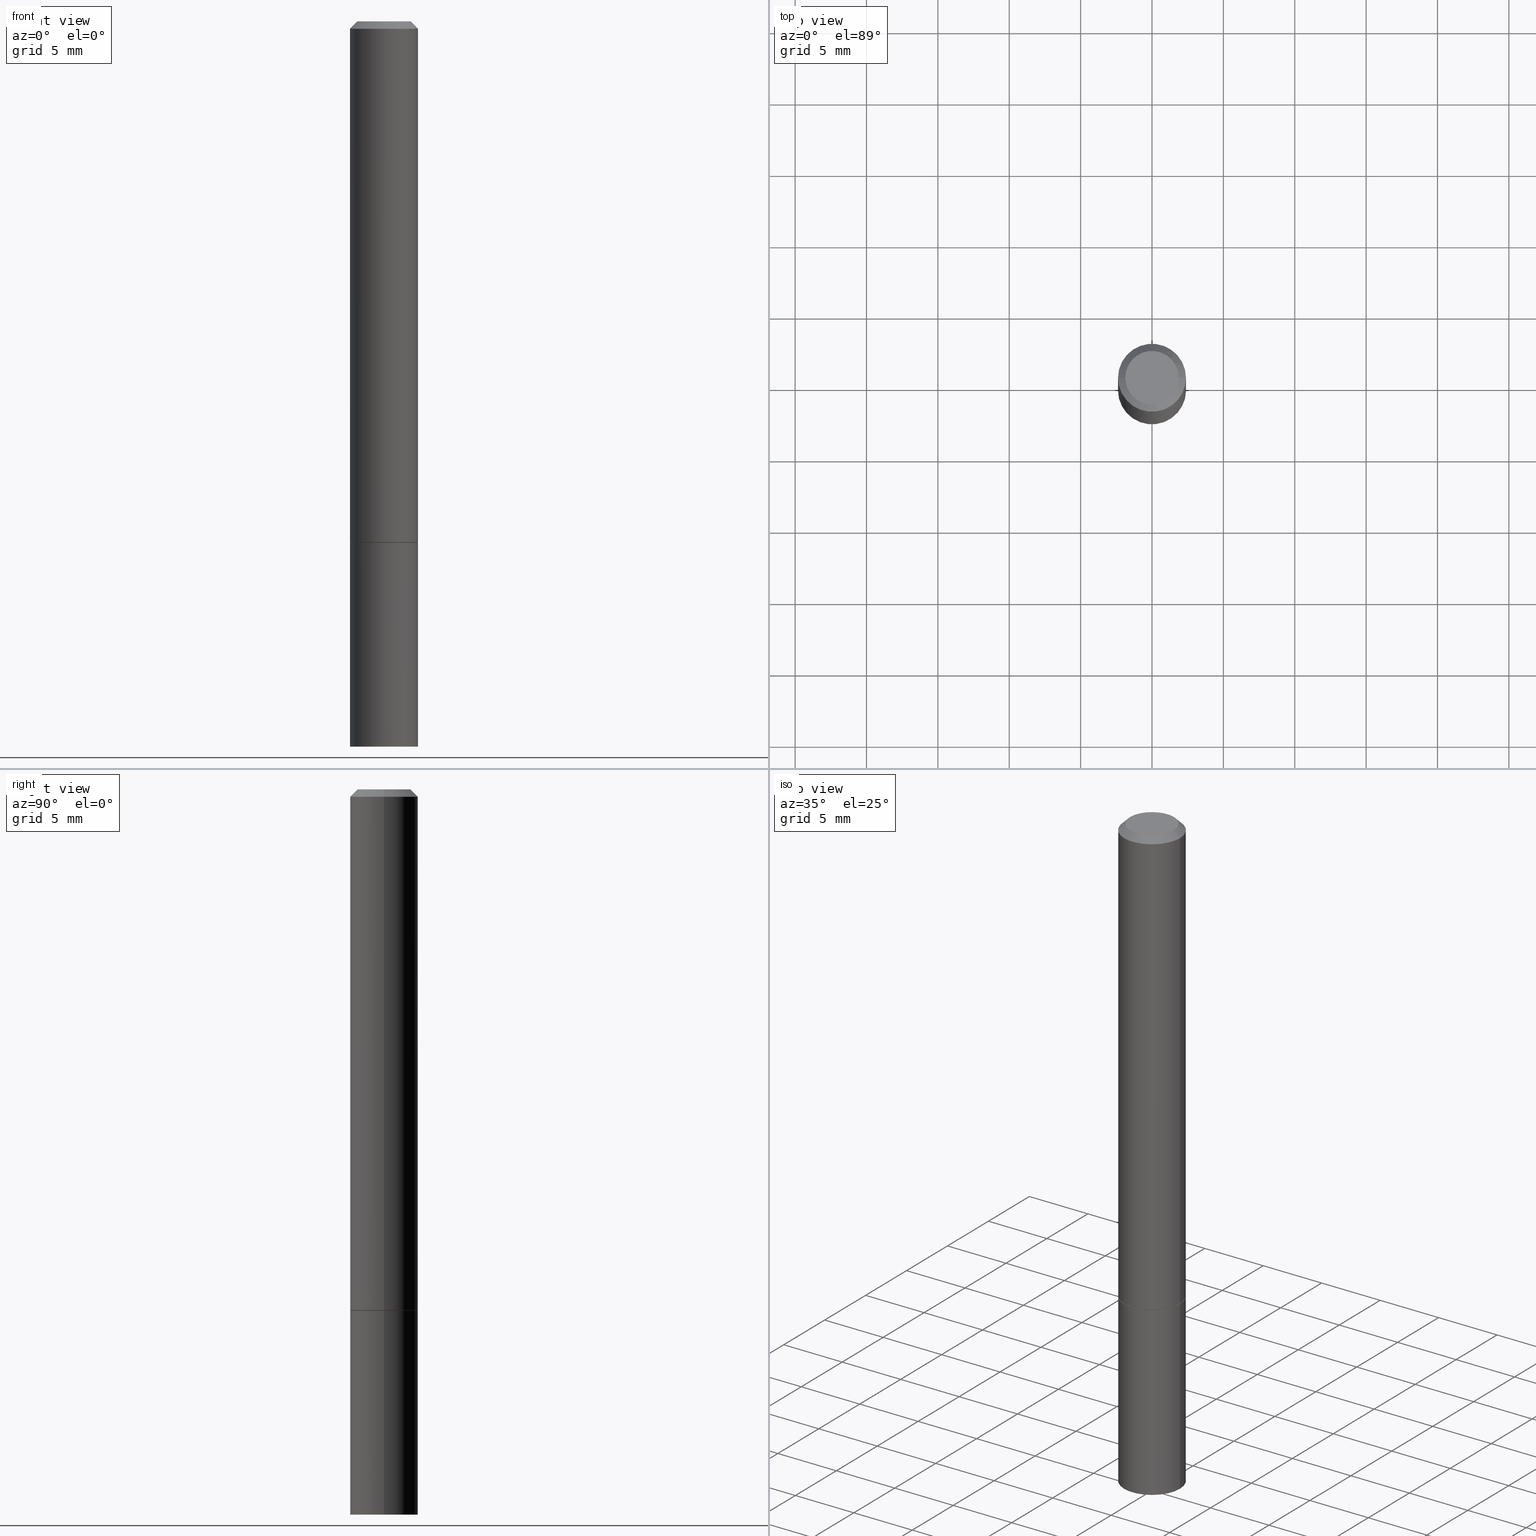
[diagram: canonical four-view strip — front | top / right | iso, engineering-drawing reading convention]
A machine part, canonical four-view strip (front | top / right | iso — engineering-drawing reading convention). The complete STEP part file that produces these views, byte-faithful:
ISO-10303-21;
HEADER;
FILE_DESCRIPTION (( 'STEP AP203' ),
    '1' );
FILE_NAME ('34661.STEP',
    '2024-02-27T16:35:18',
    ( '' ),
    ( '' ),
    'SwSTEP 2.0',
    'SolidWorks 2023',
    '' );
FILE_SCHEMA (( 'CONFIG_CONTROL_DESIGN' ));
ENDSEC;

DATA;
#1 = CYLINDRICAL_SURFACE ( 'NONE', #86, 0.09374999999999991673 ) ;
#2 = PERSON_AND_ORGANIZATION ( #312, #95 ) ;
#3 = LINE ( 'NONE', #251, #40 ) ;
#4 = CIRCLE ( 'NONE', #242, 0.09375000000000001388 ) ;
#5 = PLANE ( 'NONE',  #113 ) ;
#6 = DIRECTION ( 'NONE',  ( -2.445468806185136597E-29, 3.491481338843145583E-15, 1.000000000000000000 ) ) ;
#7 = MANIFOLD_SOLID_BREP ( 'Body-Move/Copy2[1]', #55 ) ;
#8 = CARTESIAN_POINT ( 'NONE',  ( 4.890937612370273194E-29, -6.982962677686291165E-15, -2.000000000000000000 ) ) ;
#9 = AXIS2_PLACEMENT_3D ( 'NONE', #184, #315, #104 ) ;
#10 = VECTOR ( 'NONE', #115, 39.37007874015748143 ) ;
#11 = CARTESIAN_POINT ( 'NONE',  ( 3.515361408891133858E-29, -5.019004424587021553E-15, -1.437500000000000000 ) ) ;
#12 = ADVANCED_FACE ( 'NONE', ( #78 ), #151, .T. ) ;
#13 = ORIENTED_EDGE ( 'NONE', *, *, #257, .T. ) ;
#14 = CYLINDRICAL_SURFACE ( 'NONE', #363, 0.09375000000000001388 ) ;
#15 = DIRECTION ( 'NONE',  ( -2.445468806185136877E-29, 3.491481338843145188E-15, 1.000000000000000000 ) ) ;
#16 = FACE_OUTER_BOUND ( 'NONE', #23, .T. ) ;
#17 = ADVANCED_FACE ( 'NONE', ( #185 ), #14, .T. ) ;
#18 = FACE_OUTER_BOUND ( 'NONE', #236, .T. ) ;
#19 = COORDINATED_UNIVERSAL_TIME_OFFSET ( 5, 0, .BEHIND. ) ;
#20 = ADVANCED_FACE ( 'NONE', ( #18 ), #215, .T. ) ;
#21 = ORIENTED_EDGE ( 'NONE', *, *, #229, .T. ) ;
#22 = ADVANCED_FACE ( 'NONE', ( #155 ), #27, .T. ) ;
#23 = EDGE_LOOP ( 'NONE', ( #332, #209 ) ) ;
#24 = PERSON_AND_ORGANIZATION_ROLE ( 'creator' ) ;
#25 = CARTESIAN_POINT ( 'NONE',  ( -0.07374999999999988509, 5.499083108677923596E-16, 4.268512490096688071E-18 ) ) ;
#26 = AXIS2_PLACEMENT_3D ( 'NONE', #11, #347, #325 ) ;
#27 = CONICAL_SURFACE ( 'NONE', #351, 0.09374999999999983347, 0.7853981633974469467 ) ;
#28 = DATE_TIME_ROLE ( 'creation_date' ) ;
#29 = CARTESIAN_POINT ( 'NONE',  ( 3.512915940084948255E-29, -5.015512943248178546E-15, -1.436499999999999888 ) ) ;
#30 = PERSON_AND_ORGANIZATION_ROLE ( 'classification_officer' ) ;
#31 = CARTESIAN_POINT ( 'NONE',  ( 0.09375000000000001388, -7.637615428719378669E-15, -2.000000000000000000 ) ) ;
#32 = DIRECTION ( 'NONE',  ( -2.445468806185136597E-29, 3.491481338843145583E-15, 1.000000000000000000 ) ) ;
#33 = CC_DESIGN_APPROVAL ( #129, ( #256 ) ) ;
#34 = CIRCLE ( 'NONE', #128, 0.09374999999999983347 ) ;
#35 = ADVANCED_FACE ( 'NONE', ( #16 ), #134, .F. ) ;
#36 = DIRECTION ( 'NONE',  ( -1.000000000000000000, 6.982962677686265922E-15, -4.876176775795935793E-29 ) ) ;
#37 = DIRECTION ( 'NONE',  ( 0.000000000000000000, 0.000000000000000000, 1.000000000000000000 ) ) ;
#38 = EDGE_CURVE ( 'NONE', #102, #80, #328, .T. ) ;
#39 = LINE ( 'NONE', #267, #183 ) ;
#40 = VECTOR ( 'NONE', #276, 39.37007874015748143 ) ;
#41 = CONICAL_SURFACE ( 'NONE', #9, 0.09274999999999999911, 0.7853981633974141952 ) ;
#42 = DIRECTION ( 'NONE',  ( -2.445468806185136597E-29, 3.491481338843145583E-15, 1.000000000000000000 ) ) ;
#43 = ORIENTED_EDGE ( 'NONE', *, *, #76, .F. ) ;
#44 = ORIENTED_EDGE ( 'NONE', *, *, #164, .F. ) ;
#45 = CC_DESIGN_SECURITY_CLASSIFICATION ( #235, ( #256 ) ) ;
#46 = CARTESIAN_POINT ( 'NONE',  ( -0.09374999999999991673, 6.661338147750933326E-16, -4.611501647113969791E-30 ) ) ;
#47 = VERTEX_POINT ( 'NONE', #166 ) ;
#48 = EDGE_LOOP ( 'NONE', ( #130, #127 ) ) ;
#49 = ADVANCED_FACE ( 'NONE', ( #280 ), #90, .T. ) ;
#50 = AXIS2_PLACEMENT_3D ( 'NONE', #8, #42, #214 ) ;
#51 = ORIENTED_EDGE ( 'NONE', *, *, #107, .T. ) ;
#52 = PERSON_AND_ORGANIZATION_ROLE ( 'creator' ) ;
#53 = ORIENTED_EDGE ( 'NONE', *, *, #76, .T. ) ;
#54 = DIRECTION ( 'NONE',  ( -2.445468806185136597E-29, 3.491481338843145583E-15, 1.000000000000000000 ) ) ;
#55 = CLOSED_SHELL ( 'NONE', ( #20, #49, #35, #17 ) ) ;
#56 = DIRECTION ( 'NONE',  ( 1.000000000000000000, -6.982962677686261189E-15, 0.000000000000000000 ) ) ;
#57 = CIRCLE ( 'NONE', #139, 0.09375000000000001388 ) ;
#58 = PERSON_AND_ORGANIZATION_ROLE ( 'design_owner' ) ;
#59 = DIRECTION ( 'NONE',  ( -1.000000000000000000, 6.982962677686265922E-15, -4.876176775795935793E-29 ) ) ;
#60 = CC_DESIGN_DATE_AND_TIME_ASSIGNMENT ( #223, #330, ( #235 ) ) ;
#61 = DIRECTION ( 'NONE',  ( 1.000000000000000000, -6.982962677686265922E-15, 4.875869617646592813E-29 ) ) ;
#62 = EDGE_CURVE ( 'NONE', #262, #270, #314, .T. ) ;
#63 = CARTESIAN_POINT ( 'NONE',  ( -1.043851414335219820E-46, 1.490343170380447200E-32, 4.268512490100411279E-18 ) ) ;
#64 = CIRCLE ( 'NONE', #50, 0.09375000000000001388 ) ;
#65 = APPLICATION_PROTOCOL_DEFINITION ( 'international standard', 'config_control_design', 1994, #355 ) ;
#66 = CARTESIAN_POINT ( 'NONE',  ( 0.07374999999999988509, -6.094815207017963170E-16, 4.268512490104342487E-18 ) ) ;
#67 = ORIENTED_EDGE ( 'NONE', *, *, #152, .F. ) ;
#68 =( LENGTH_UNIT ( ) NAMED_UNIT ( * ) SI_UNIT ( $, .METRE. ) );
#69 = EDGE_LOOP ( 'NONE', ( #337, #97, #295, #353 ) ) ;
#70 = CARTESIAN_POINT ( 'NONE',  ( 4.890937612370274910E-31, -6.982962677686295307E-17, -0.02000000000000000736 ) ) ;
#71 = EDGE_LOOP ( 'NONE', ( #300, #190, #51, #44 ) ) ;
#72 = ORIENTED_EDGE ( 'NONE', *, *, #107, .F. ) ;
#73 = COORDINATED_UNIVERSAL_TIME_OFFSET ( 5, 0, .BEHIND. ) ;
#74 = DESIGN_CONTEXT ( 'detailed design', #96, 'design' ) ;
#75 = ORIENTED_EDGE ( 'NONE', *, *, #164, .T. ) ;
#76 = EDGE_CURVE ( 'NONE', #206, #102, #3, .T. ) ;
#77 = AXIS2_PLACEMENT_3D ( 'NONE', #233, #150, #131 ) ;
#78 = FACE_OUTER_BOUND ( 'NONE', #69, .T. ) ;
#79 = CALENDAR_DATE ( 2024, 27, 2 ) ;
#80 = VERTEX_POINT ( 'NONE', #199 ) ;
#81 = DIRECTION ( 'NONE',  ( 2.438088387897960049E-29, -3.491481338843145188E-15, -1.000000000000000000 ) ) ;
#82 = CALENDAR_DATE ( 2024, 27, 2 ) ;
#83 = EDGE_CURVE ( 'NONE', #108, #262, #103, .T. ) ;
#84 = CIRCLE ( 'NONE', #352, 0.09375000000000001388 ) ;
#85 = LINE ( 'NONE', #365, #334 ) ;
#86 = AXIS2_PLACEMENT_3D ( 'NONE', #117, #6, #259 ) ;
#87 = DIRECTION ( 'NONE',  ( -2.445468806185136597E-29, 3.491481338843145583E-15, 1.000000000000000000 ) ) ;
#88 = FACE_OUTER_BOUND ( 'NONE', #304, .T. ) ;
#89 = EDGE_CURVE ( 'NONE', #270, #320, #34, .T. ) ;
#90 = PLANE ( 'NONE',  #197 ) ;
#91 = CARTESIAN_POINT ( 'NONE',  ( -0.09375000000000001388, -1.876537470237424631E-15, -1.436499999999999888 ) ) ;
#92 = ORIENTED_EDGE ( 'NONE', *, *, #83, .T. ) ;
#93 = PRODUCT_DEFINITION_SHAPE ( 'NONE', 'NONE',  #204 ) ;
#94 = DIRECTION ( 'NONE',  ( -2.445468806185136877E-29, 3.491481338843145188E-15, 1.000000000000000000 ) ) ;
#95 = ORGANIZATION ( 'UNSPECIFIED', 'UNSPECIFIED', '' ) ;
#96 = APPLICATION_CONTEXT ( 'configuration controlled 3d designs of mechanical parts and assemblies' ) ;
#97 = ORIENTED_EDGE ( 'NONE', *, *, #83, .F. ) ;
#98 = EDGE_LOOP ( 'NONE', ( #193, #181, #298, #72 ) ) ;
#99 = CC_DESIGN_PERSON_AND_ORGANIZATION_ASSIGNMENT ( #168, #274, ( #256 ) ) ;
#100 = FACE_OUTER_BOUND ( 'NONE', #268, .T. ) ;
#101 = DIMENSIONAL_EXPONENTS ( 1.000000000000000000, 0.000000000000000000, 0.000000000000000000, 0.000000000000000000, 0.000000000000000000, 0.000000000000000000, 0.000000000000000000 ) ;
#102 = VERTEX_POINT ( 'NONE', #203 ) ;
#103 = CIRCLE ( 'NONE', #241, 0.07374999999999988509 ) ;
#104 = DIRECTION ( 'NONE',  ( 1.000000000000000000, -6.982962677686261977E-15, 0.000000000000000000 ) ) ;
#105 = ORIENTED_EDGE ( 'NONE', *, *, #154, .F. ) ;
#106 = DIRECTION ( 'NONE',  ( 1.000000000000000000, -6.982962677686261189E-15, 0.000000000000000000 ) ) ;
#107 = EDGE_CURVE ( 'NONE', #358, #47, #258, .T. ) ;
#108 = VERTEX_POINT ( 'NONE', #25 ) ;
#109 = APPROVAL_STATUS ( 'not_yet_approved' ) ;
#110 = ORIENTED_EDGE ( 'NONE', *, *, #176, .F. ) ;
#111 = CALENDAR_DATE ( 2024, 27, 2 ) ;
#112 = ORIENTED_EDGE ( 'NONE', *, *, #89, .F. ) ;
#113 = AXIS2_PLACEMENT_3D ( 'NONE', #311, #81, #59 ) ;
#114 = PERSON_AND_ORGANIZATION ( #312, #95 ) ;
#115 = DIRECTION ( 'NONE',  ( 0.7071067811865465735, -7.319954787623252890E-15, -0.7071067811865484609 ) ) ;
#116 = EDGE_CURVE ( 'NONE', #136, #240, #85, .T. ) ;
#117 = CARTESIAN_POINT ( 'NONE',  ( 0.000000000000000000, 0.000000000000000000, 0.000000000000000000 ) ) ;
#118 =( GEOMETRIC_REPRESENTATION_CONTEXT ( 3 ) GLOBAL_UNCERTAINTY_ASSIGNED_CONTEXT ( ( #165 ) ) GLOBAL_UNIT_ASSIGNED_CONTEXT ( ( #153, #301, #269 ) ) REPRESENTATION_CONTEXT ( 'NONE', 'WORKASPACE' ) );
#119 = ADVANCED_FACE ( 'NONE', ( #147 ), #5, .F. ) ;
#120 = DIRECTION ( 'NONE',  ( -2.445468806185136597E-29, 3.491481338843145583E-15, 1.000000000000000000 ) ) ;
#121 = CARTESIAN_POINT ( 'NONE',  ( 0.09274999999999999911, -5.666674212942423043E-15, -1.437500000000000000 ) ) ;
#122 = CARTESIAN_POINT ( 'NONE',  ( 3.515361408891133858E-29, -5.019004424587021553E-15, -1.437500000000000000 ) ) ;
#123 = AXIS2_PLACEMENT_3D ( 'NONE', #187, #158, #302 ) ;
#124 = PLANE ( 'NONE',  #77 ) ;
#125 = DIRECTION ( 'NONE',  ( -2.445468806185136877E-29, 3.491481338843145188E-15, 1.000000000000000000 ) ) ;
#126 = ADVANCED_FACE ( 'NONE', ( #88 ), #169, .T. ) ;
#127 = ORIENTED_EDGE ( 'NONE', *, *, #359, .F. ) ;
#128 = AXIS2_PLACEMENT_3D ( 'NONE', #283, #342, #340 ) ;
#129 = APPROVAL ( #109, 'UNSPECIFIED' ) ;
#130 = ORIENTED_EDGE ( 'NONE', *, *, #254, .F. ) ;
#131 = DIRECTION ( 'NONE',  ( 1.000000000000000000, -6.982962677686265922E-15, 4.876176775795935793E-29 ) ) ;
#132 = ORIENTED_EDGE ( 'NONE', *, *, #89, .T. ) ;
#133 = CIRCLE ( 'NONE', #326, 0.09374999999999983347 ) ;
#134 = PLANE ( 'NONE',  #232 ) ;
#135 = APPROVAL_DATE_TIME ( #194, #265 ) ;
#136 = VERTEX_POINT ( 'NONE', #224 ) ;
#137 = CARTESIAN_POINT ( 'NONE',  ( 0.000000000000000000, 0.000000000000000000, 0.000000000000000000 ) ) ;
#138 = PERSON_AND_ORGANIZATION ( #312, #95 ) ;
#139 = AXIS2_PLACEMENT_3D ( 'NONE', #143, #287, #56 ) ;
#140 = MANIFOLD_SOLID_BREP ( 'Body-Move/Copy2[2]', #263 ) ;
#141 = DIRECTION ( 'NONE',  ( -0.7071067811865232589, 7.493145998870265808E-15, 0.7071067811865715536 ) ) ;
#142 = PERSON_AND_ORGANIZATION ( #312, #95 ) ;
#143 = CARTESIAN_POINT ( 'NONE',  ( 3.515361408891133858E-29, -5.019004424587021553E-15, -1.437500000000000000 ) ) ;
#144 = APPROVAL_ROLE ( '' ) ;
#145 = CARTESIAN_POINT ( 'NONE',  ( 3.512915940084948255E-29, -5.015512943248178546E-15, -1.436499999999999888 ) ) ;
#146 = APPROVAL_PERSON_ORGANIZATION ( #163, #129, #253 ) ;
#147 = FACE_OUTER_BOUND ( 'NONE', #331, .T. ) ;
#148 = DIRECTION ( 'NONE',  ( 1.000000000000000000, -6.982962677686261189E-15, 0.000000000000000000 ) ) ;
#149 = DIRECTION ( 'NONE',  ( 1.000000000000000000, 0.000000000000000000, 0.000000000000000000 ) ) ;
#150 = DIRECTION ( 'NONE',  ( -2.438088387897960049E-29, 3.491481338843145188E-15, 1.000000000000000000 ) ) ;
#151 = CONICAL_SURFACE ( 'NONE', #123, 0.09374999999999983347, 0.7853981633974469467 ) ;
#152 = EDGE_CURVE ( 'NONE', #262, #108, #310, .T. ) ;
#153 =( CONVERSION_BASED_UNIT ( 'INCH', #186 ) LENGTH_UNIT ( ) NAMED_UNIT ( #101 ) );
#154 = EDGE_CURVE ( 'NONE', #108, #320, #282, .T. ) ;
#155 = FACE_OUTER_BOUND ( 'NONE', #238, .T. ) ;
#156 = CARTESIAN_POINT ( 'NONE',  ( 0.09374999999999983347, -7.130013140679429031E-16, -0.02000000000000000736 ) ) ;
#157 = DIRECTION ( 'NONE',  ( -1.000000000000000000, 6.982962677686267499E-15, 0.000000000000000000 ) ) ;
#158 = DIRECTION ( 'NONE',  ( 2.445468806185136597E-29, -3.491481338843145583E-15, -1.000000000000000000 ) ) ;
#159 = EDGE_CURVE ( 'NONE', #80, #102, #57, .T. ) ;
#160 = CIRCLE ( 'NONE', #26, 0.09274999999999999911 ) ;
#161 = PERSON_AND_ORGANIZATION ( #312, #95 ) ;
#162 = ORIENTED_EDGE ( 'NONE', *, *, #218, .T. ) ;
#163 = PERSON_AND_ORGANIZATION ( #312, #95 ) ;
#164 = EDGE_CURVE ( 'NONE', #240, #47, #4, .T. ) ;
#165 = UNCERTAINTY_MEASURE_WITH_UNIT (LENGTH_MEASURE( 1.000000000000000082E-05 ), #153, 'distance_accuracy_value', 'NONE');
#166 = CARTESIAN_POINT ( 'NONE',  ( 0.09375000000000001388, -5.670165694281265261E-15, -1.436499999999999888 ) ) ;
#167 = DIRECTION ( 'NONE',  ( 0.7071067811865232589, -2.468850131082003836E-15, 0.7071067811865715536 ) ) ;
#168 = PERSON_AND_ORGANIZATION ( #312, #95 ) ;
#169 = CYLINDRICAL_SURFACE ( 'NONE', #213, 0.09374999999999991673 ) ;
#170 = ADVANCED_FACE ( 'NONE', ( #252 ), #1, .T. ) ;
#171 = DIRECTION ( 'NONE',  ( 2.438088387897960049E-29, -3.491481338843145188E-15, -1.000000000000000000 ) ) ;
#172 = LOCAL_TIME ( 11, 35, 18.00000000000000000, #73 ) ;
#173 = CARTESIAN_POINT ( 'NONE',  ( -0.09374999999999983347, 5.848231242562234171E-16, -0.02000000000000000736 ) ) ;
#174 = AXIS2_PLACEMENT_3D ( 'NONE', #195, #120, #308 ) ;
#175 = DIRECTION ( 'NONE',  ( -2.445468806185136597E-29, 3.491481338843145583E-15, 1.000000000000000000 ) ) ;
#176 = EDGE_CURVE ( 'NONE', #136, #358, #297, .T. ) ;
#177 = VERTEX_POINT ( 'NONE', #345 ) ;
#178 = CARTESIAN_POINT ( 'NONE',  ( 3.515361408891133858E-29, -5.019004424587021553E-15, -1.437500000000000000 ) ) ;
#179 = LOCAL_TIME ( 11, 35, 18.00000000000000000, #19 ) ;
#180 = ORIENTED_EDGE ( 'NONE', *, *, #257, .F. ) ;
#181 = ORIENTED_EDGE ( 'NONE', *, *, #116, .T. ) ;
#182 = ORIENTED_EDGE ( 'NONE', *, *, #38, .F. ) ;
#183 = VECTOR ( 'NONE', #15, 39.37007874015748143 ) ;
#184 = CARTESIAN_POINT ( 'NONE',  ( 3.515361408891133858E-29, -5.019004424587021553E-15, -1.437500000000000000 ) ) ;
#185 = FACE_OUTER_BOUND ( 'NONE', #237, .T. ) ;
#186 = LENGTH_MEASURE_WITH_UNIT ( LENGTH_MEASURE( 0.02539999999999999897 ), #68 );
#187 = CARTESIAN_POINT ( 'NONE',  ( 4.890937612370274910E-31, -6.982962677686295307E-17, -0.02000000000000000736 ) ) ;
#188 = APPROVAL ( #196, 'UNSPECIFIED' ) ;
#189 = PERSON_AND_ORGANIZATION ( #312, #95 ) ;
#190 = ORIENTED_EDGE ( 'NONE', *, *, #176, .T. ) ;
#191 = CC_DESIGN_APPROVAL ( #188, ( #204 ) ) ;
#192 = CARTESIAN_POINT ( 'NONE',  ( 0.000000000000000000, 0.000000000000000000, 0.000000000000000000 ) ) ;
#193 = ORIENTED_EDGE ( 'NONE', *, *, #294, .T. ) ;
#194 = DATE_AND_TIME ( #216, #172 ) ;
#195 = CARTESIAN_POINT ( 'NONE',  ( -1.043851414335219820E-46, 1.490343170380447200E-32, 4.268512490100411279E-18 ) ) ;
#196 = APPROVAL_STATUS ( 'not_yet_approved' ) ;
#197 = AXIS2_PLACEMENT_3D ( 'NONE', #201, #171, #36 ) ;
#198 = VECTOR ( 'NONE', #125, 39.37007874015748143 ) ;
#199 = CARTESIAN_POINT ( 'NONE',  ( -0.09375000000000001388, -5.334849736361562435E-15, -1.437500000000000000 ) ) ;
#200 = DIRECTION ( 'NONE',  ( -2.445468806185136597E-29, 3.491481338843145583E-15, 1.000000000000000000 ) ) ;
#201 = CARTESIAN_POINT ( 'NONE',  ( 6.546527510331364135E-16, 0.09374999999999301947, -2.000000000000000444 ) ) ;
#202 = CONICAL_SURFACE ( 'NONE', #277, 0.09274999999999999911, 0.7853981633974141952 ) ;
#203 = CARTESIAN_POINT ( 'NONE',  ( 0.09375000000000001388, -5.673657175620109057E-15, -1.437500000000000000 ) ) ;
#204 = PRODUCT_DEFINITION ( 'UNKNOWN', '', #256, #74 ) ;
#205 = FACE_OUTER_BOUND ( 'NONE', #98, .T. ) ;
#206 = VERTEX_POINT ( 'NONE', #31 ) ;
#207 = DIRECTION ( 'NONE',  ( 1.000000000000000000, -6.982962677686267499E-15, 0.000000000000000000 ) ) ;
#208 = LOCAL_TIME ( 11, 35, 18.00000000000000000, #305 ) ;
#209 = ORIENTED_EDGE ( 'NONE', *, *, #159, .T. ) ;
#210 = DIRECTION ( 'NONE',  ( -2.445468806185136597E-29, 3.491481338843145583E-15, 1.000000000000000000 ) ) ;
#211 = ORIENTED_EDGE ( 'NONE', *, *, #285, .F. ) ;
#212 = AXIS2_PLACEMENT_3D ( 'NONE', #288, #37, #149 ) ;
#213 = AXIS2_PLACEMENT_3D ( 'NONE', #228, #344, #227 ) ;
#214 = DIRECTION ( 'NONE',  ( 1.000000000000000000, -6.982962677686261189E-15, 0.000000000000000000 ) ) ;
#215 = CYLINDRICAL_SURFACE ( 'NONE', #279, 0.09375000000000001388 ) ;
#216 = CALENDAR_DATE ( 2024, 27, 2 ) ;
#217 = CARTESIAN_POINT ( 'NONE',  ( 3.515361408891133858E-29, -5.019004424587021553E-15, -1.437500000000000000 ) ) ;
#218 = EDGE_CURVE ( 'NONE', #47, #240, #321, .T. ) ;
#219 = ORIENTED_EDGE ( 'NONE', *, *, #294, .F. ) ;
#220 = APPROVAL_DATE_TIME ( #278, #129 ) ;
#221 = VECTOR ( 'NONE', #167, 39.37007874015748854 ) ;
#222 = EDGE_LOOP ( 'NONE', ( #324, #75, #327, #246 ) ) ;
#223 = DATE_AND_TIME ( #79, #284 ) ;
#224 = CARTESIAN_POINT ( 'NONE',  ( -0.09274999999999999911, -4.354677582821307024E-15, -1.437500000000000000 ) ) ;
#225 = DIRECTION ( 'NONE',  ( 1.000000000000000000, -6.982962677686261977E-15, 0.000000000000000000 ) ) ;
#226 = CC_DESIGN_PERSON_AND_ORGANIZATION_ASSIGNMENT ( #138, #52, ( #204 ) ) ;
#227 = DIRECTION ( 'NONE',  ( 1.000000000000000000, -6.982962677686266711E-15, 4.876176775795935793E-29 ) ) ;
#228 = CARTESIAN_POINT ( 'NONE',  ( 0.000000000000000000, 0.000000000000000000, 0.000000000000000000 ) ) ;
#229 = EDGE_CURVE ( 'NONE', #240, #320, #264, .T. ) ;
#230 = DIRECTION ( 'NONE',  ( -2.445468806185136597E-29, 3.491481338843145583E-15, 1.000000000000000000 ) ) ;
#231 = CC_DESIGN_PERSON_AND_ORGANIZATION_ASSIGNMENT ( #142, #24, ( #256 ) ) ;
#232 = AXIS2_PLACEMENT_3D ( 'NONE', #243, #329, #356 ) ;
#233 = CARTESIAN_POINT ( 'NONE',  ( 3.515361408891133858E-29, -5.019004424587021553E-15, -1.437500000000000000 ) ) ;
#234 = DIRECTION ( 'NONE',  ( 1.000000000000000000, -6.982962677686261189E-15, 0.000000000000000000 ) ) ;
#235 = SECURITY_CLASSIFICATION ( '', '', #336 ) ;
#236 = EDGE_LOOP ( 'NONE', ( #322, #13, #182, #43 ) ) ;
#237 = EDGE_LOOP ( 'NONE', ( #180, #292, #53, #275 ) ) ;
#238 = EDGE_LOOP ( 'NONE', ( #67, #273, #132, #105 ) ) ;
#239 = CARTESIAN_POINT ( 'NONE',  ( -0.09374999999999983347, 5.848231242562234171E-16, -0.02000000000000000736 ) ) ;
#240 = VERTEX_POINT ( 'NONE', #91 ) ;
#241 = AXIS2_PLACEMENT_3D ( 'NONE', #63, #200, #61 ) ;
#242 = AXIS2_PLACEMENT_3D ( 'NONE', #29, #54, #148 ) ;
#243 = CARTESIAN_POINT ( 'NONE',  ( 6.546527510331227070E-16, 0.09374999999999499012, -1.437500000000000222 ) ) ;
#244 = SHAPE_DEFINITION_REPRESENTATION ( #93, #316 ) ;
#245 = ADVANCED_FACE ( 'NONE', ( #205 ), #202, .T. ) ;
#246 = ORIENTED_EDGE ( 'NONE', *, *, #296, .F. ) ;
#247 = COORDINATED_UNIVERSAL_TIME_OFFSET ( 5, 0, .BEHIND. ) ;
#248 = DIRECTION ( 'NONE',  ( -2.445468806185136597E-29, 3.491481338843145583E-15, 1.000000000000000000 ) ) ;
#249 = CC_DESIGN_APPROVAL ( #265, ( #235 ) ) ;
#250 = DATE_AND_TIME ( #303, #179 ) ;
#251 = CARTESIAN_POINT ( 'NONE',  ( 0.09375000000000001388, -6.546527510330875041E-16, 4.571415727308690506E-30 ) ) ;
#252 = FACE_OUTER_BOUND ( 'NONE', #222, .T. ) ;
#253 = APPROVAL_ROLE ( '' ) ;
#254 = EDGE_CURVE ( 'NONE', #206, #177, #84, .T. ) ;
#255 = CARTESIAN_POINT ( 'NONE',  ( 0.09374999999999983347, -7.130013140679429031E-16, -0.02000000000000000736 ) ) ;
#256 = PRODUCT_DEFINITION_FORMATION_WITH_SPECIFIED_SOURCE ( 'ANY', '', #318, .NOT_KNOWN. ) ;
#257 = EDGE_CURVE ( 'NONE', #177, #80, #261, .T. ) ;
#258 = LINE ( 'NONE', #121, #221 ) ;
#259 = DIRECTION ( 'NONE',  ( 1.000000000000000000, -6.982962677686266711E-15, 4.876176775795935793E-29 ) ) ;
#260 = CC_DESIGN_DATE_AND_TIME_ASSIGNMENT ( #250, #28, ( #204 ) ) ;
#261 = LINE ( 'NONE', #291, #198 ) ;
#262 = VERTEX_POINT ( 'NONE', #66 ) ;
#263 = CLOSED_SHELL ( 'NONE', ( #245, #126, #22, #12, #170, #335, #293, #119 ) ) ;
#264 = LINE ( 'NONE', #46, #309 ) ;
#265 = APPROVAL ( #281, 'UNSPECIFIED' ) ;
#266 = CARTESIAN_POINT ( 'NONE',  ( 4.890937612370274910E-31, -6.982962677686295307E-17, -0.02000000000000000736 ) ) ;
#267 = CARTESIAN_POINT ( 'NONE',  ( 0.09374999999999991673, -6.546527510330869125E-16, 4.571415727308685602E-30 ) ) ;
#268 = EDGE_LOOP ( 'NONE', ( #219, #110 ) ) ;
#269 =( NAMED_UNIT ( * ) SI_UNIT ( $, .STERADIAN. ) SOLID_ANGLE_UNIT ( ) );
#270 = VERTEX_POINT ( 'NONE', #156 ) ;
#271 = VECTOR ( 'NONE', #343, 39.37007874015748143 ) ;
#272 = APPROVAL_DATE_TIME ( #360, #188 ) ;
#273 = ORIENTED_EDGE ( 'NONE', *, *, #62, .T. ) ;
#274 = PERSON_AND_ORGANIZATION_ROLE ( 'design_supplier' ) ;
#275 = ORIENTED_EDGE ( 'NONE', *, *, #159, .F. ) ;
#276 = DIRECTION ( 'NONE',  ( -2.445468806185136877E-29, 3.491481338843145188E-15, 1.000000000000000000 ) ) ;
#277 = AXIS2_PLACEMENT_3D ( 'NONE', #178, #319, #354 ) ;
#278 = DATE_AND_TIME ( #111, #348 ) ;
#279 = AXIS2_PLACEMENT_3D ( 'NONE', #137, #248, #361 ) ;
#280 = FACE_OUTER_BOUND ( 'NONE', #48, .T. ) ;
#281 = APPROVAL_STATUS ( 'not_yet_approved' ) ;
#282 = LINE ( 'NONE', #173, #271 ) ;
#283 = CARTESIAN_POINT ( 'NONE',  ( 4.890937612370274910E-31, -6.982962677686295307E-17, -0.02000000000000000736 ) ) ;
#284 = LOCAL_TIME ( 11, 35, 18.00000000000000000, #247 ) ;
#285 = EDGE_CURVE ( 'NONE', #47, #270, #39, .T. ) ;
#286 = AXIS2_PLACEMENT_3D ( 'NONE', #217, #32, #313 ) ;
#287 = DIRECTION ( 'NONE',  ( -2.445468806185136597E-29, 3.491481338843145583E-15, 1.000000000000000000 ) ) ;
#288 = CARTESIAN_POINT ( 'NONE',  ( 0.000000000000000000, 0.000000000000000000, 0.000000000000000000 ) ) ;
#289 = CARTESIAN_POINT ( 'NONE',  ( 0.09274999999999999911, -5.666674212942423043E-15, -1.437500000000000000 ) ) ;
#290 = AXIS2_PLACEMENT_3D ( 'NONE', #122, #230, #225 ) ;
#291 = CARTESIAN_POINT ( 'NONE',  ( -0.09375000000000001388, 6.661338147750940229E-16, -4.611501647113973995E-30 ) ) ;
#292 = ORIENTED_EDGE ( 'NONE', *, *, #359, .T. ) ;
#293 = ADVANCED_FACE ( 'NONE', ( #100 ), #124, .F. ) ;
#294 = EDGE_CURVE ( 'NONE', #358, #136, #160, .T. ) ;
#295 = ORIENTED_EDGE ( 'NONE', *, *, #154, .T. ) ;
#296 = EDGE_CURVE ( 'NONE', #320, #270, #133, .T. ) ;
#297 = CIRCLE ( 'NONE', #290, 0.09274999999999999911 ) ;
#298 = ORIENTED_EDGE ( 'NONE', *, *, #218, .F. ) ;
#299 = CARTESIAN_POINT ( 'NONE',  ( 4.890937612370273194E-29, -6.982962677686291165E-15, -2.000000000000000000 ) ) ;
#300 = ORIENTED_EDGE ( 'NONE', *, *, #116, .F. ) ;
#301 =( NAMED_UNIT ( * ) PLANE_ANGLE_UNIT ( ) SI_UNIT ( $, .RADIAN. ) );
#302 = DIRECTION ( 'NONE',  ( -1.000000000000000000, 6.982962677686267499E-15, 0.000000000000000000 ) ) ;
#303 = CALENDAR_DATE ( 2024, 27, 2 ) ;
#304 = EDGE_LOOP ( 'NONE', ( #162, #21, #112, #211 ) ) ;
#305 = COORDINATED_UNIVERSAL_TIME_OFFSET ( 5, 0, .BEHIND. ) ;
#306 = DIRECTION ( 'NONE',  ( -2.445468806185136597E-29, 3.491481338843145583E-15, 1.000000000000000000 ) ) ;
#307 = DIRECTION ( 'NONE',  ( 1.000000000000000000, -6.982962677686265922E-15, 4.876176775795935793E-29 ) ) ;
#308 = DIRECTION ( 'NONE',  ( 1.000000000000000000, -6.982962677686265922E-15, 4.875869617646592813E-29 ) ) ;
#309 = VECTOR ( 'NONE', #94, 39.37007874015748143 ) ;
#310 = CIRCLE ( 'NONE', #174, 0.07374999999999988509 ) ;
#311 = CARTESIAN_POINT ( 'NONE',  ( 5.149934974793613022E-16, 0.07374999999999988509, -2.553624924946313252E-16 ) ) ;
#312 = PERSON ( 'UNSPECIFIED', 'UNSPECIFIED', 'UNSPECIFIED', ('UNSPECIFIED'), ('UNSPECIFIED'), ('UNSPECIFIED') ) ;
#313 = DIRECTION ( 'NONE',  ( 1.000000000000000000, -6.982962677686261189E-15, 0.000000000000000000 ) ) ;
#314 = LINE ( 'NONE', #255, #10 ) ;
#315 = DIRECTION ( 'NONE',  ( -2.445468806185136597E-29, 3.491481338843145583E-15, 1.000000000000000000 ) ) ;
#316 = ADVANCED_BREP_SHAPE_REPRESENTATION ( '34661', ( #7, #140, #212 ), #118 ) ;
#317 = ORIENTED_EDGE ( 'NONE', *, *, #152, .T. ) ;
#318 = PRODUCT ( '34661', '34661', '', ( #357 ) ) ;
#319 = DIRECTION ( 'NONE',  ( -2.445468806185136597E-29, 3.491481338843145583E-15, 1.000000000000000000 ) ) ;
#320 = VERTEX_POINT ( 'NONE', #239 ) ;
#321 = CIRCLE ( 'NONE', #362, 0.09375000000000001388 ) ;
#322 = ORIENTED_EDGE ( 'NONE', *, *, #254, .T. ) ;
#323 = CC_DESIGN_PERSON_AND_ORGANIZATION_ASSIGNMENT ( #161, #58, ( #318 ) ) ;
#324 = ORIENTED_EDGE ( 'NONE', *, *, #229, .F. ) ;
#325 = DIRECTION ( 'NONE',  ( 1.000000000000000000, -6.982962677686261977E-15, 0.000000000000000000 ) ) ;
#326 = AXIS2_PLACEMENT_3D ( 'NONE', #70, #175, #207 ) ;
#327 = ORIENTED_EDGE ( 'NONE', *, *, #285, .T. ) ;
#328 = CIRCLE ( 'NONE', #286, 0.09375000000000001388 ) ;
#329 = DIRECTION ( 'NONE',  ( 2.438088387897960049E-29, -3.491481338843145188E-15, -1.000000000000000000 ) ) ;
#330 = DATE_TIME_ROLE ( 'classification_date' ) ;
#331 = EDGE_LOOP ( 'NONE', ( #92, #317 ) ) ;
#332 = ORIENTED_EDGE ( 'NONE', *, *, #38, .T. ) ;
#333 = APPROVAL_PERSON_ORGANIZATION ( #114, #265, #144 ) ;
#334 = VECTOR ( 'NONE', #141, 39.37007874015748854 ) ;
#335 = ADVANCED_FACE ( 'NONE', ( #350 ), #41, .T. ) ;
#336 = SECURITY_CLASSIFICATION_LEVEL ( 'unclassified' ) ;
#337 = ORIENTED_EDGE ( 'NONE', *, *, #62, .F. ) ;
#338 = PRODUCT_RELATED_PRODUCT_CATEGORY ( 'detail', '', ( #318 ) ) ;
#339 = CC_DESIGN_PERSON_AND_ORGANIZATION_ASSIGNMENT ( #189, #30, ( #235 ) ) ;
#340 = DIRECTION ( 'NONE',  ( 1.000000000000000000, -6.982962677686267499E-15, 0.000000000000000000 ) ) ;
#341 = APPROVAL_ROLE ( '' ) ;
#342 = DIRECTION ( 'NONE',  ( -2.445468806185136597E-29, 3.491481338843145583E-15, 1.000000000000000000 ) ) ;
#343 = DIRECTION ( 'NONE',  ( -0.7071067811865465735, 2.468850131082246805E-15, -0.7071067811865484609 ) ) ;
#344 = DIRECTION ( 'NONE',  ( -2.445468806185136597E-29, 3.491481338843145583E-15, 1.000000000000000000 ) ) ;
#345 = CARTESIAN_POINT ( 'NONE',  ( -0.09375000000000001388, -5.334849736361562435E-15, -2.000000000000000000 ) ) ;
#346 = APPROVAL_PERSON_ORGANIZATION ( #2, #188, #341 ) ;
#347 = DIRECTION ( 'NONE',  ( -2.445468806185136597E-29, 3.491481338843145583E-15, 1.000000000000000000 ) ) ;
#348 = LOCAL_TIME ( 11, 35, 18.00000000000000000, #364 ) ;
#349 = DIRECTION ( 'NONE',  ( 2.445468806185136597E-29, -3.491481338843145583E-15, -1.000000000000000000 ) ) ;
#350 = FACE_OUTER_BOUND ( 'NONE', #71, .T. ) ;
#351 = AXIS2_PLACEMENT_3D ( 'NONE', #266, #349, #157 ) ;
#352 = AXIS2_PLACEMENT_3D ( 'NONE', #299, #210, #234 ) ;
#353 = ORIENTED_EDGE ( 'NONE', *, *, #296, .T. ) ;
#354 = DIRECTION ( 'NONE',  ( 1.000000000000000000, -6.982962677686261977E-15, 0.000000000000000000 ) ) ;
#355 = APPLICATION_CONTEXT ( 'configuration controlled 3d designs of mechanical parts and assemblies' ) ;
#356 = DIRECTION ( 'NONE',  ( -1.000000000000000000, 6.982962677686265922E-15, -4.876176775795935793E-29 ) ) ;
#357 = MECHANICAL_CONTEXT ( 'NONE', #355, 'mechanical' ) ;
#358 = VERTEX_POINT ( 'NONE', #289 ) ;
#359 = EDGE_CURVE ( 'NONE', #177, #206, #64, .T. ) ;
#360 = DATE_AND_TIME ( #82, #208 ) ;
#361 = DIRECTION ( 'NONE',  ( 1.000000000000000000, -6.982962677686265922E-15, 4.876176775795935793E-29 ) ) ;
#362 = AXIS2_PLACEMENT_3D ( 'NONE', #145, #87, #106 ) ;
#363 = AXIS2_PLACEMENT_3D ( 'NONE', #192, #306, #307 ) ;
#364 = COORDINATED_UNIVERSAL_TIME_OFFSET ( 5, 0, .BEHIND. ) ;
#365 = CARTESIAN_POINT ( 'NONE',  ( -0.09274999999999999911, -4.359976037169529426E-15, -1.437500000000000000 ) ) ;
#366 = APPLICATION_PROTOCOL_DEFINITION ( 'international standard', 'config_control_design', 1994, #96 ) ;
ENDSEC;
END-ISO-10303-21;
